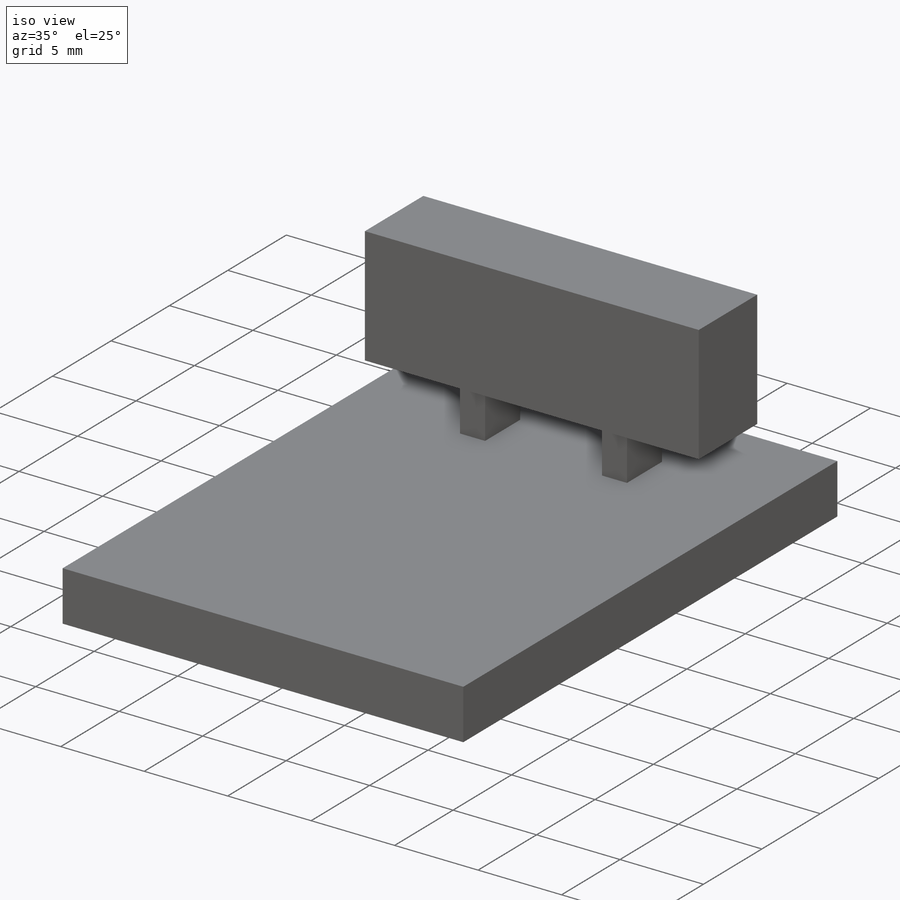
[diagram: iso view]
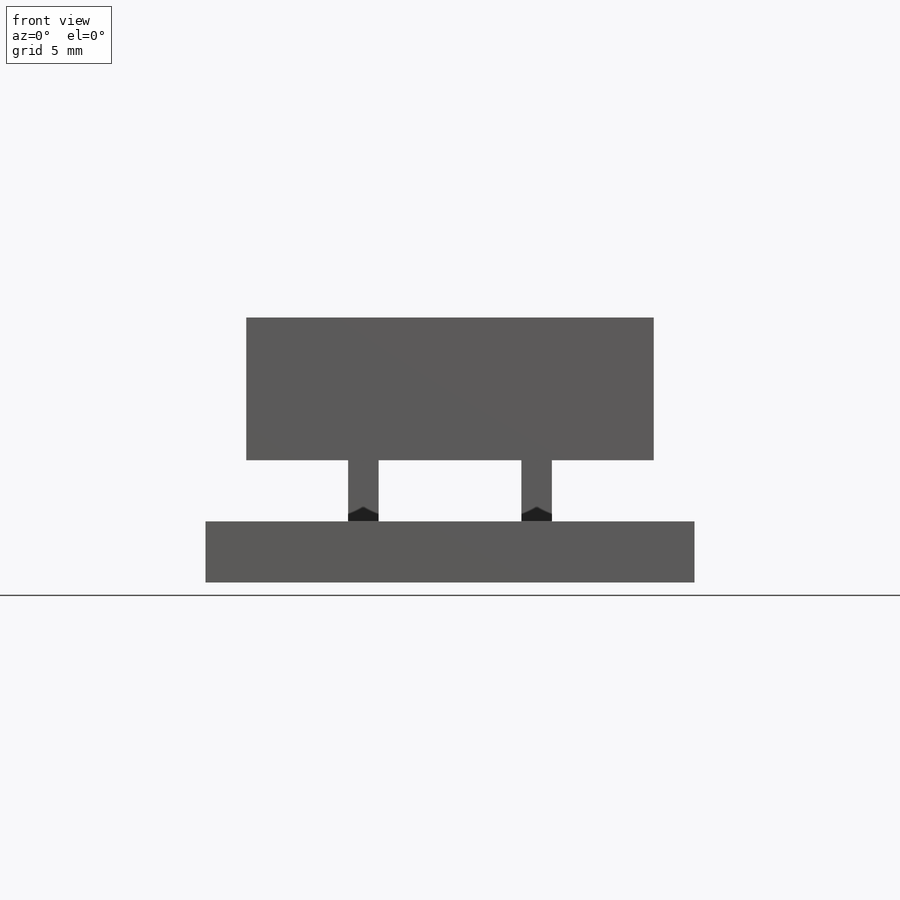
[diagram: front view]
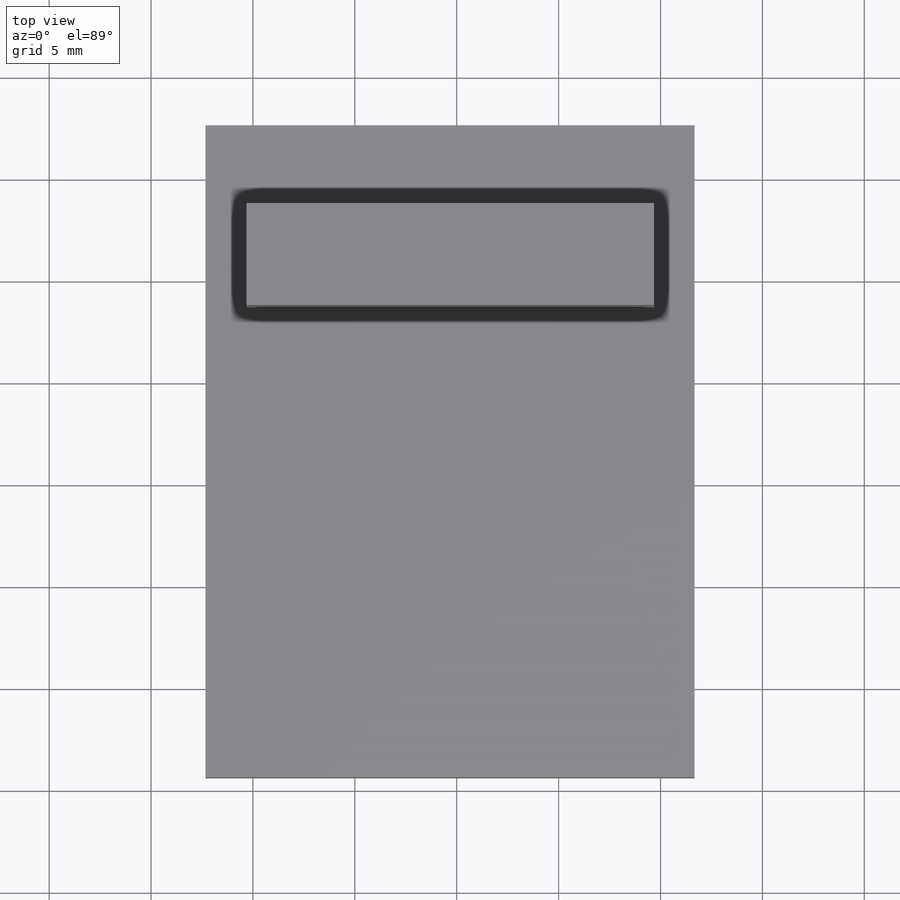
[diagram: top view]
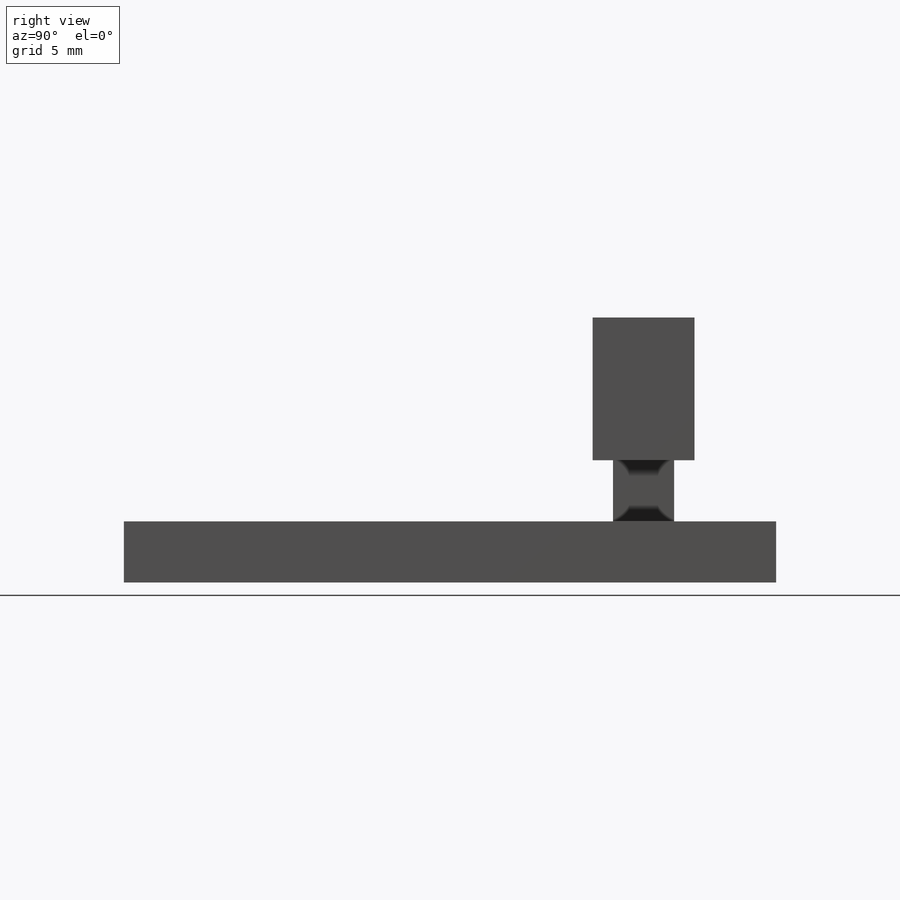
[diagram: right view]
SOLIDWORKS PART (.sldprt)
format: sldprt  version: not decoded by parser v0  size: 159,232 bytes
history: native  units: mm
features: sketch x3, extrude x3, material x1 (+13 scaffold rows collapsed)
feature tree (20):
  scaffold x13  (default folders/planes/origin — collapsed)
  material  "Material <not specified>"
  sketch  "Sketch1"  dims[D1=24.0mm D2=32.0mm]
  extrude  "Boss-Extrude1"  Depth=3mm
  sketch  "Sketch2"  dims[D1=5.0mm D2=1.5mm D3=3.0mm D5=7.0mm D6=7.0mm D4=2.0]
  extrude  "Boss-Extrude3"  Depth=3mm
  sketch  "Sketch3"  dims[D1=20.0mm D2=5.0mm D3=4.0mm D4=2.0mm]
  extrude  "Boss-Extrude4"  Depth=7mm
decode coverage: 6 of 6 modeling features carry decoded parameters
note: suppression state not decoded; provenance and decode notes live in map.json
